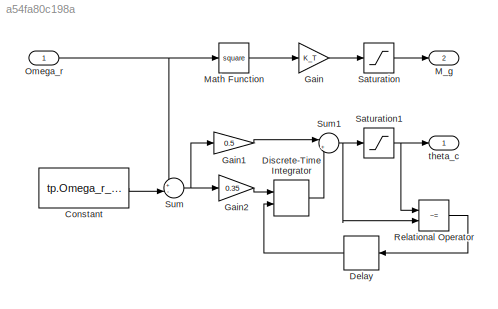
MODEL slx_a54fa80c198a
KIND model
CONFIG AbsTol = auto
CONFIG EnableMultiTasking = on
CONFIG FixedStep = DT
CONFIG MaxStep = auto
CONFIG MinStep = auto
CONFIG RelTol = 1e-3
CONFIG SampleTimeConstraint = Unconstrained
CONFIG Solver = FixedStepAuto
CONFIG SolverName = FixedStepAuto
CONFIG StartTime = 0.0
CONFIG StopTime = 10.0
BLOCK [Constant] Constant
  Value = tp.Omega_r_rated
BLOCK [Delay] Delay
  DelayLength = 1
  InputPortMap = u0
  Ports = [1, 1]
BLOCK [DiscreteIntegrator] Discrete-Time Integrator
  ExternalReset = level
  ICPrevOutput = DiscIntNeverNeededParam
  ICPrevScaledInput = DiscIntNeverNeededParam
  InitialConditionSetting = Auto
  Ports = [2, 1]
  SampleTime = T_s
BLOCK [Gain] Gain
  Gain = K_T
BLOCK [Gain] Gain1
  Gain = 0.5
BLOCK [Gain] Gain2
  Gain = 0.35
BLOCK [Outport] M_g
  Port = 2
  SampleTime = T_s
BLOCK [Math] Math Function
  Operator = square
  Ports = [1, 1]
BLOCK [Inport] Omega_r
  SampleTime = T_s
BLOCK [RelationalOperator] Relational Operator
  InputSameDT = off
  Operator = ~=
  OutDataTypeStr = boolean
  Ports = [2, 1]
  RndMeth = Simplest
BLOCK [Saturate] Saturation
  LowerLimit = -tp.M_g_rated
  UpperLimit = tp.M_g_rated
BLOCK [Saturate] Saturation1
  LowerLimit = 0
  UpperLimit = inf
BLOCK [Sum] Sum
  Inputs = +-|
  Ports = [2, 1]
BLOCK [Sum] Sum1
  Inputs = |++
  Ports = [2, 1]
BLOCK [Outport] theta_c
  SampleTime = T_s
LINE Constant:1 -> Sum:2
LINE Delay:1 -> Discrete-Time Integrator:2
LINE Discrete-Time Integrator:1 -> Sum1:2
LINE Gain1:1 -> Sum1:1
LINE Gain2:1 -> Discrete-Time Integrator:1
LINE Gain:1 -> Saturation:1
LINE Math Function:1 -> Gain:1
NET Omega_r:1 -> Math Function:1, Sum:1
LINE Relational Operator:1 -> Delay:1
NET Saturation1:1 -> Relational Operator:1, theta_c:1
LINE Saturation:1 -> M_g:1
NET Sum1:1 -> Relational Operator:2, Saturation1:1
NET Sum:1 -> Gain1:1, Gain2:1
note: NET lines group one-source signal fan-out (src -> all destinations, sorted); 1:1 wires keep LINE
